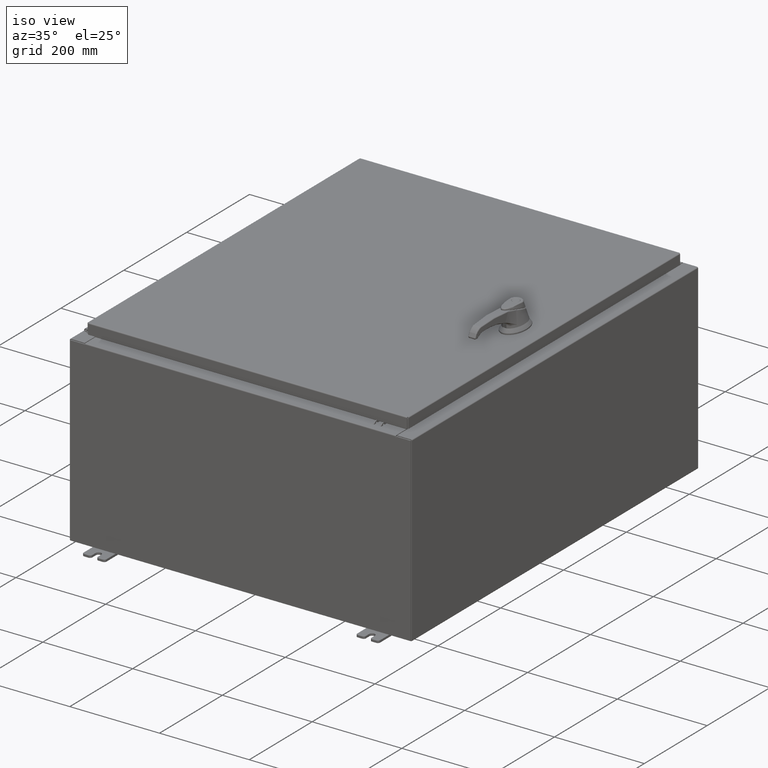
[diagram: clean part render]
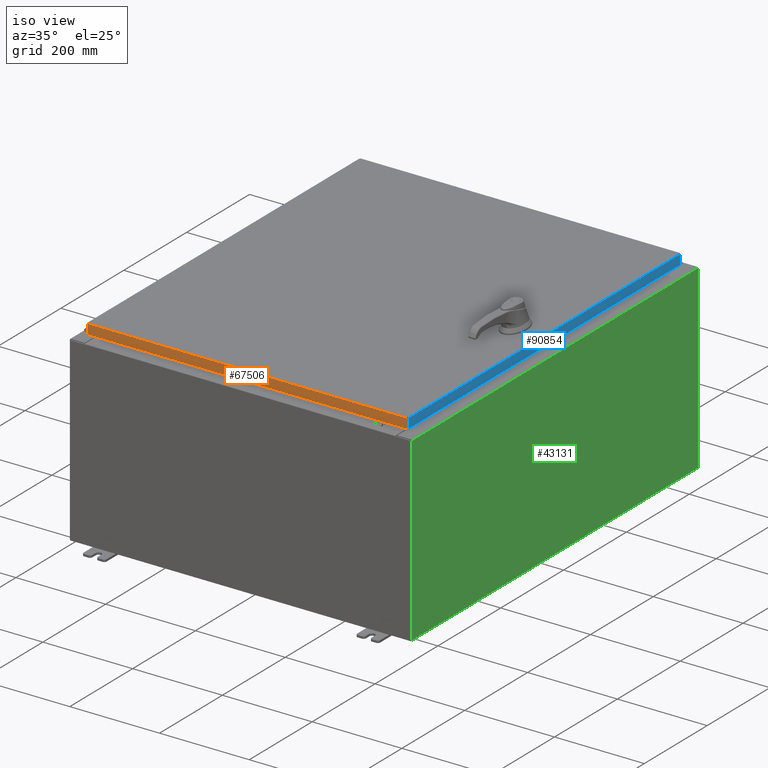
[diagram: same view with three faces highlighted in distinct colors, each labeled with its STEP entity id]
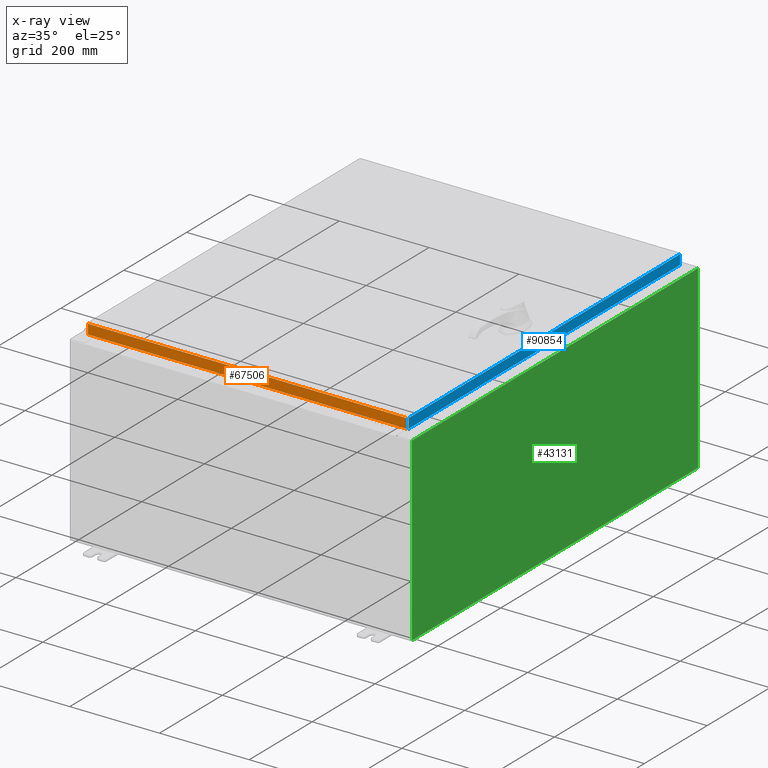
[diagram: x-ray of the same camera — body ghosted, the three highlighted faces saturated]
A machine part, iso view with three faces highlighted in distinct colors.
The next image is the same camera in x-ray (body ghosted, the three faces saturated) — at least one of them is partly hidden behind the body in this view.
Their STEP definitions:

[orange] entity #67506 — the highlighted planar face has unit normal (-0, 1, -0).
#6216 = ORIENTED_EDGE ( 'NONE', *, *, #15472, .F. ) ;
#7016 = ORIENTED_EDGE ( 'NONE', *, *, #108159, .T. ) ;
#10637 = VERTEX_POINT ( 'NONE', #106488 ) ;
#15449 = VECTOR ( 'NONE', #95849, 39.37007874015748100 ) ;
#15472 = EDGE_CURVE ( 'NONE', #69994, #108901, #107682, .T. ) ;
#16844 = ORIENTED_EDGE ( 'NONE', *, *, #23392, .F. ) ;
#17355 = DIRECTION ( 'NONE',  ( -3.194218701939450500E-031, 1.000000000000000000, -2.532419924601866100E-015 ) ) ;
#23392 = EDGE_CURVE ( 'NONE', #111659, #10637, #47497, .T. ) ;
#24758 = DIRECTION ( 'NONE',  ( -1.000000000000000000, -0.0000000000000000000, 1.261330583805775800E-016 ) ) ;
#30401 = LINE ( 'NONE', #59230, #52725 ) ;
#37639 = CARTESIAN_POINT ( 'NONE',  ( 13.98915786437626400, -17.09400000000000100, -0.9376999999999997600 ) ) ;
#42198 = CARTESIAN_POINT ( 'NONE',  ( -13.98915786437627800, -17.09400000000000100, -0.08770000000000008300 ) ) ;
#44887 = EDGE_LOOP ( 'NONE', ( #6216, #7016, #16844, #66182 ) ) ;
#45834 = AXIS2_PLACEMENT_3D ( 'NONE', #93479, #17355, #84334 ) ;
#47497 = LINE ( 'NONE', #91661, #95451 ) ;
#50890 = DIRECTION ( 'NONE',  ( 1.000000000000000000, 3.194218701939450900E-031, -7.997438812334547700E-046 ) ) ;
#52725 = VECTOR ( 'NONE', #68866, 39.37007874015748100 ) ;
#59230 = CARTESIAN_POINT ( 'NONE',  ( 13.98915786437626400, -17.09400000000000100, -0.07469999999999980800 ) ) ;
#66182 = ORIENTED_EDGE ( 'NONE', *, *, #95569, .F. ) ;
#67506 = ADVANCED_FACE ( 'NONE', ( #110042 ), #74666, .F. ) ;
#68866 = DIRECTION ( 'NONE',  ( -0.0000000000000000000, -2.532419924601866100E-015, -1.000000000000000000 ) ) ;
#69994 = VERTEX_POINT ( 'NONE', #42198 ) ;
#74666 = PLANE ( 'NONE',  #45834 ) ;
#79268 = VECTOR ( 'NONE', #50890, 39.37007874015748100 ) ;
#84334 = DIRECTION ( 'NONE',  ( 0.0000000000000000000, 2.532419924601866100E-015, 1.000000000000000000 ) ) ;
#86291 = CARTESIAN_POINT ( 'NONE',  ( -13.98915786437627600, -17.09400000000000100, 4.354999984715587800E-014 ) ) ;
#86630 = CARTESIAN_POINT ( 'NONE',  ( 13.98915786437626500, -17.09400000000000100, -0.08770000000000008300 ) ) ;
#91661 = CARTESIAN_POINT ( 'NONE',  ( 14.07799999999999400, -17.09400000000000100, -0.9376999999999997600 ) ) ;
#91819 = LINE ( 'NONE', #86291, #15449 ) ;
#93479 = CARTESIAN_POINT ( 'NONE',  ( 5.460197449095296700E-030, -17.09400000000000100, 4.354999984715587800E-014 ) ) ;
#95451 = VECTOR ( 'NONE', #24758, 39.37007874015748100 ) ;
#95569 = EDGE_CURVE ( 'NONE', #108901, #111659, #30401, .T. ) ;
#95849 = DIRECTION ( 'NONE',  ( 0.0000000000000000000, -2.532419924601866100E-015, -1.000000000000000000 ) ) ;
#106488 = CARTESIAN_POINT ( 'NONE',  ( -13.98915786437627800, -17.09400000000000100, -0.9376999999999962000 ) ) ;
#107682 = LINE ( 'NONE', #117904, #79268 ) ;
#108159 = EDGE_CURVE ( 'NONE', #69994, #10637, #91819, .T. ) ;
#108901 = VERTEX_POINT ( 'NONE', #86630 ) ;
#110042 = FACE_OUTER_BOUND ( 'NONE', #44887, .T. ) ;
#111659 = VERTEX_POINT ( 'NONE', #37639 ) ;
#117904 = CARTESIAN_POINT ( 'NONE',  ( 14.07799999999999400, -17.09400000000000100, -0.08770000000000008300 ) ) ;

[blue] entity #90854 — the highlighted planar face has unit normal (1, 0, 0).
#6280 = CARTESIAN_POINT ( 'NONE',  ( 14.07799999999999400, 0.0000000000000000000, 3.591222135455663800E-014 ) ) ;
#9341 = AXIS2_PLACEMENT_3D ( 'NONE', #6280, #44890, #111847 ) ;
#10781 = ORIENTED_EDGE ( 'NONE', *, *, #92908, .T. ) ;
#14552 = EDGE_CURVE ( 'NONE', #124263, #97874, #15051, .T. ) ;
#15051 = LINE ( 'NONE', #90130, #62959 ) ;
#16645 = CARTESIAN_POINT ( 'NONE',  ( 14.07799999999999400, 17.00515786437627200, 1.546586040496592500E-013 ) ) ;
#18558 = DIRECTION ( 'NONE',  ( 0.0000000000000000000, -1.000000000000000000, 0.0000000000000000000 ) ) ;
#24385 = CARTESIAN_POINT ( 'NONE',  ( 14.07799999999999400, -17.00515786437626900, -0.07469999999999980800 ) ) ;
#30117 = VECTOR ( 'NONE', #43548, 39.37007874015748100 ) ;
#40945 = ORIENTED_EDGE ( 'NONE', *, *, #108790, .F. ) ;
#43548 = DIRECTION ( 'NONE',  ( -2.532419924601866100E-015, -6.982962677686265900E-015, 1.000000000000000000 ) ) ;
#43855 = ORIENTED_EDGE ( 'NONE', *, *, #84930, .F. ) ;
#44136 = LINE ( 'NONE', #16645, #98009 ) ;
#44890 = DIRECTION ( 'NONE',  ( 1.000000000000000000, 0.0000000000000000000, 2.532419924601866100E-015 ) ) ;
#49725 = VECTOR ( 'NONE', #18558, 39.37007874015748100 ) ;
#52714 = LINE ( 'NONE', #95070, #49725 ) ;
#55781 = EDGE_LOOP ( 'NONE', ( #43855, #40945, #10781, #87468 ) ) ;
#62392 = FACE_OUTER_BOUND ( 'NONE', #55781, .T. ) ;
#62959 = VECTOR ( 'NONE', #109301, 39.37007874015748100 ) ;
#64149 = CARTESIAN_POINT ( 'NONE',  ( 14.07799999999999600, 17.00515786437627600, -0.9376999999999997600 ) ) ;
#64889 = CARTESIAN_POINT ( 'NONE',  ( 14.07799999999999400, 17.00515786437626900, -0.08770000000000008300 ) ) ;
#70665 = CARTESIAN_POINT ( 'NONE',  ( 14.07799999999999600, -17.00515786437626200, -0.9376999999999997600 ) ) ;
#71566 = VERTEX_POINT ( 'NONE', #64149 ) ;
#77987 = LINE ( 'NONE', #24385, #30117 ) ;
#83633 = DIRECTION ( 'NONE',  ( -2.532419924601866100E-015, -6.982962677686265900E-015, 1.000000000000000000 ) ) ;
#84930 = EDGE_CURVE ( 'NONE', #122318, #97874, #77987, .T. ) ;
#87468 = ORIENTED_EDGE ( 'NONE', *, *, #14552, .T. ) ;
#90130 = CARTESIAN_POINT ( 'NONE',  ( 14.07799999999999400, 0.0000000000000000000, -0.08770000000000008300 ) ) ;
#90854 = ADVANCED_FACE ( 'NONE', ( #62392 ), #102208, .T. ) ;
#92908 = EDGE_CURVE ( 'NONE', #71566, #124263, #44136, .T. ) ;
#95070 = CARTESIAN_POINT ( 'NONE',  ( 14.07799999999999600, -17.09400000000000100, -0.9376999999999997600 ) ) ;
#97874 = VERTEX_POINT ( 'NONE', #110940 ) ;
#98009 = VECTOR ( 'NONE', #83633, 39.37007874015748100 ) ;
#102208 = PLANE ( 'NONE',  #9341 ) ;
#108790 = EDGE_CURVE ( 'NONE', #71566, #122318, #52714, .T. ) ;
#109301 = DIRECTION ( 'NONE',  ( 0.0000000000000000000, -1.000000000000000000, 0.0000000000000000000 ) ) ;
#110940 = CARTESIAN_POINT ( 'NONE',  ( 14.07799999999999400, -17.00515786437626900, -0.08770000000000008300 ) ) ;
#111847 = DIRECTION ( 'NONE',  ( 2.532419924601866100E-015, 0.0000000000000000000, -1.000000000000000000 ) ) ;
#122318 = VERTEX_POINT ( 'NONE', #70665 ) ;
#124263 = VERTEX_POINT ( 'NONE', #64889 ) ;

[green] entity #43131 — the highlighted planar face has unit normal (-1, 0, 0).
#919 = VECTOR ( 'NONE', #62163, 39.37007874015748100 ) ;
#1647 = VECTOR ( 'NONE', #105186, 39.37007874015748100 ) ;
#6854 = LINE ( 'NONE', #30707, #80312 ) ;
#16956 = VERTEX_POINT ( 'NONE', #26192 ) ;
#19550 = CARTESIAN_POINT ( 'NONE',  ( 14.99999999999999800, 0.0000000000000000000, -5.172322868739428200E-014 ) ) ;
#19833 = CARTESIAN_POINT ( 'NONE',  ( 15.00000000000005300, 17.92530000000000000, 15.83759999999998600 ) ) ;
#21677 = ORIENTED_EDGE ( 'NONE', *, *, #39478, .T. ) ;
#22843 = EDGE_CURVE ( 'NONE', #110787, #36912, #27407, .T. ) ;
#24471 = CARTESIAN_POINT ( 'NONE',  ( 14.99999999999999800, 17.92530000000000000, 0.01299999999999766100 ) ) ;
#24529 = AXIS2_PLACEMENT_3D ( 'NONE', #19550, #48306, #115297 ) ;
#26192 = CARTESIAN_POINT ( 'NONE',  ( 14.99999999999999800, -17.92530000000000000, 0.01300000000000023200 ) ) ;
#27407 = LINE ( 'NONE', #38302, #1647 ) ;
#30707 = CARTESIAN_POINT ( 'NONE',  ( 14.99999999999999800, -17.92530000000000000, 0.01299999999999984700 ) ) ;
#36912 = VERTEX_POINT ( 'NONE', #52863 ) ;
#38302 = CARTESIAN_POINT ( 'NONE',  ( 14.99999999999999800, 17.92530000000000000, -4.926328407896216100E-014 ) ) ;
#39478 = EDGE_CURVE ( 'NONE', #95373, #16956, #77532, .T. ) ;
#42899 = CARTESIAN_POINT ( 'NONE',  ( 14.99999999999999800, -17.92530000000000000, -5.172322868739428200E-014 ) ) ;
#43131 = ADVANCED_FACE ( 'NONE', ( #93486 ), #67214, .F. ) ;
#48306 = DIRECTION ( 'NONE',  ( -1.000000000000000000, 0.0000000000000000000, 3.430827668758846700E-015 ) ) ;
#49923 = EDGE_CURVE ( 'NONE', #110787, #16956, #6854, .T. ) ;
#52863 = CARTESIAN_POINT ( 'NONE',  ( 15.00000000000005300, 17.92530000000000000, 15.83759999999998600 ) ) ;
#55054 = CARTESIAN_POINT ( 'NONE',  ( 15.00000000000005300, -17.92530000000000000, 15.83760000000000000 ) ) ;
#59501 = DIRECTION ( 'NONE',  ( 2.091457255054409500E-031, -1.000000000000000000, 6.096072018129156600E-017 ) ) ;
#62163 = DIRECTION ( 'NONE',  ( -3.430827668758847500E-015, 0.0000000000000000000, -1.000000000000000000 ) ) ;
#67214 = PLANE ( 'NONE',  #24529 ) ;
#67796 = EDGE_CURVE ( 'NONE', #36912, #95373, #69622, .T. ) ;
#69622 = LINE ( 'NONE', #19833, #92142 ) ;
#76877 = ORIENTED_EDGE ( 'NONE', *, *, #67796, .T. ) ;
#77532 = LINE ( 'NONE', #42899, #919 ) ;
#78764 = EDGE_LOOP ( 'NONE', ( #76877, #21677, #79383, #119687 ) ) ;
#79383 = ORIENTED_EDGE ( 'NONE', *, *, #49923, .F. ) ;
#80312 = VECTOR ( 'NONE', #59501, 39.37007874015748100 ) ;
#92142 = VECTOR ( 'NONE', #115577, 39.37007874015748100 ) ;
#93486 = FACE_OUTER_BOUND ( 'NONE', #78764, .T. ) ;
#95373 = VERTEX_POINT ( 'NONE', #55054 ) ;
#105186 = DIRECTION ( 'NONE',  ( 3.430827668758847500E-015, -1.372331067503538800E-016, 1.000000000000000000 ) ) ;
#110787 = VERTEX_POINT ( 'NONE', #24471 ) ;
#115297 = DIRECTION ( 'NONE',  ( 3.430827668758846700E-015, 0.0000000000000000000, 1.000000000000000000 ) ) ;
#115577 = DIRECTION ( 'NONE',  ( -0.0000000000000000000, -1.000000000000000000, -0.0000000000000000000 ) ) ;
#119687 = ORIENTED_EDGE ( 'NONE', *, *, #22843, .T. ) ;